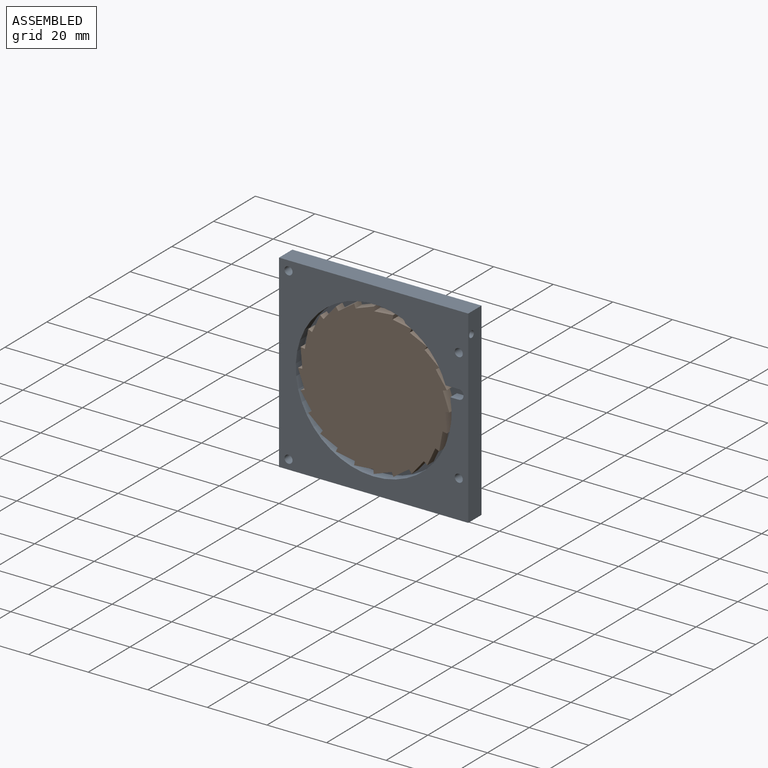
[diagram: assembled view]
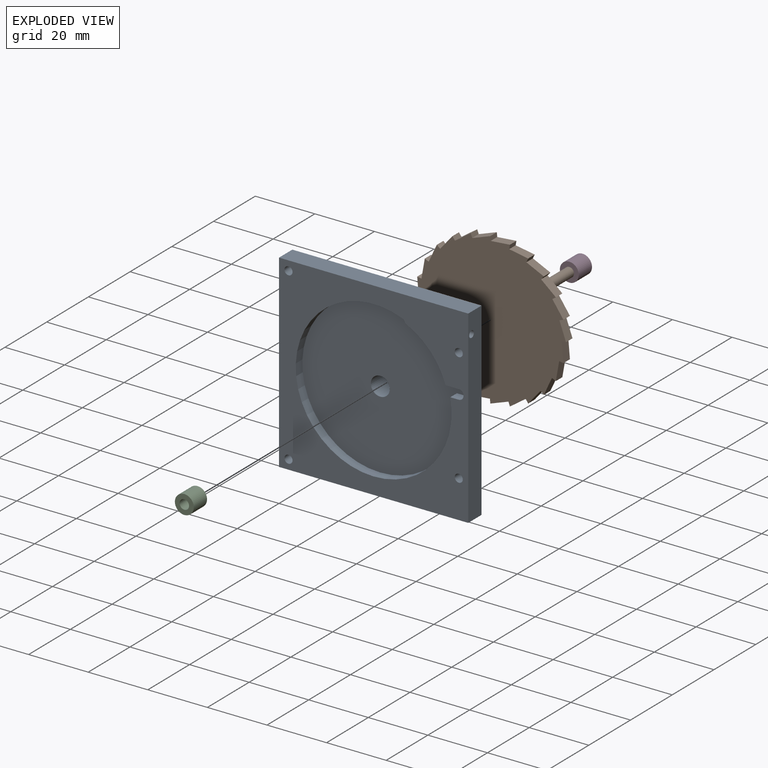
[diagram: exploded view]
GUIDED TOUR — MATED ASSEMBLY (Onshape document 8eb3bdaa9d71e246b9ef3472, AutoMate assembly 8eb3bdaa9d71e246b9ef3472_e2bbe83f050ec4818991709b_b82665791a3aad7e81ddd0f2_default)

This assembly has 4 components, labeled P0..P3 below (a component is one placed occurrence of a part; the same part can appear more than once), held together by 3 mates. A mate is a constraint between two components; its type names the relative motion it leaves free:
  FASTENED — locks the two components together rigidly (no relative motion),
  SLIDER — leaves translation along the listed axis free.
Axis/direction vectors are unit vectors and 'through' points are millimeter coordinates, both in the assembly's world frame.

MATES
  1. SLIDER "Slider 2": P0 <-> P2, axis (0.000, -1.000, 0.000) through (0.00, 0.00, 0.00) mm
  2. SLIDER "Slider 1": P0 <-> P3, axis (0.000, 1.000, 0.000) through (0.00, 28.57, 0.00) mm
  3. FASTENED "Fastened 2": P1 <-> P2, direction (0.000, 1.000, 0.000) through (0.00, -0.03, 0.00) mm

ASSEMBLY ORDER
  1. P0 — the base component [order verified]
  2. P2 [order verified]
  3. P1 [order verified]
  4. P3 [order verified]
Order-tag legend:
  [order verified] — this step's position reverses a verified removal order: the component was checked to insert without passing through the ones already placed.

Of the 4 components, 1 carries the full construction recipe — the FeatureScript program that regenerates the part's solid from scratch; the rest are supplied as boundary geometry only.
Each toured component is shown spotlighted twice — in the assembled view, then in the exploded view, where a leader line traces a displaced component back to its assembled socket (saturated green if recipe-attached, orange if geometry-only; every other component desaturated gray) — followed by its recipe or geometry summary and the mates that hold it.
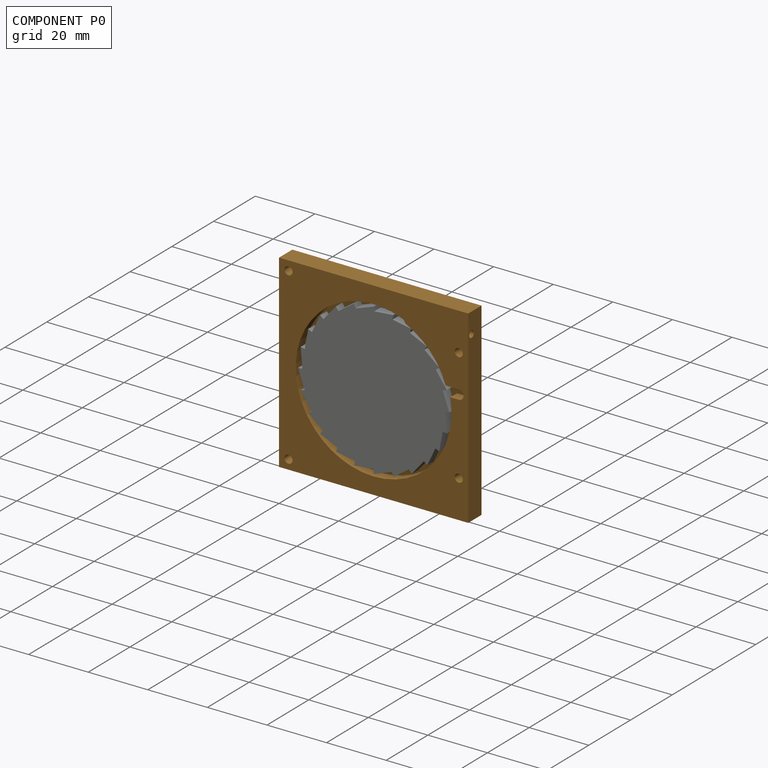
[diagram: component P0 — assembled]
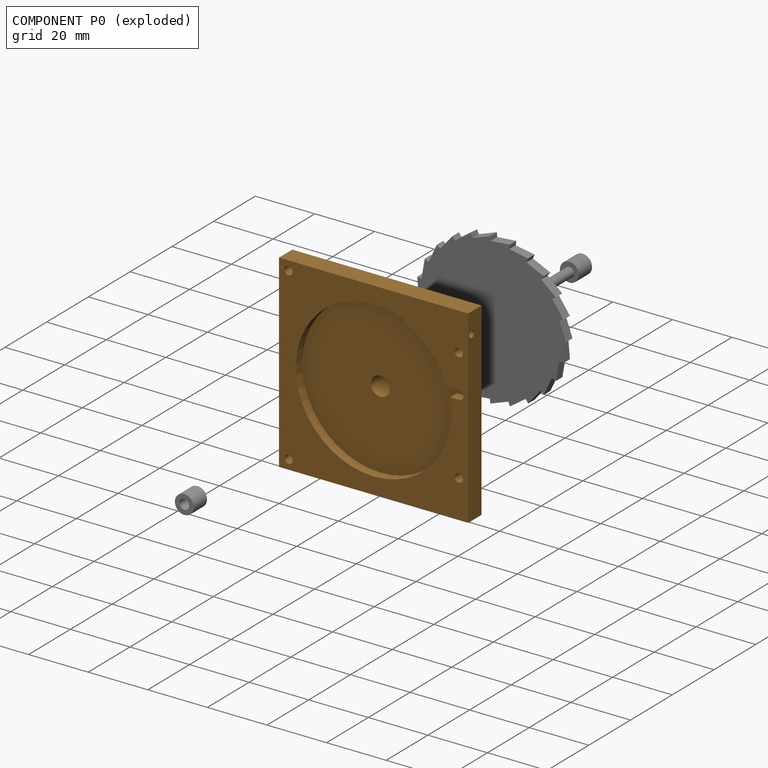
[diagram: component P0 — exploded]
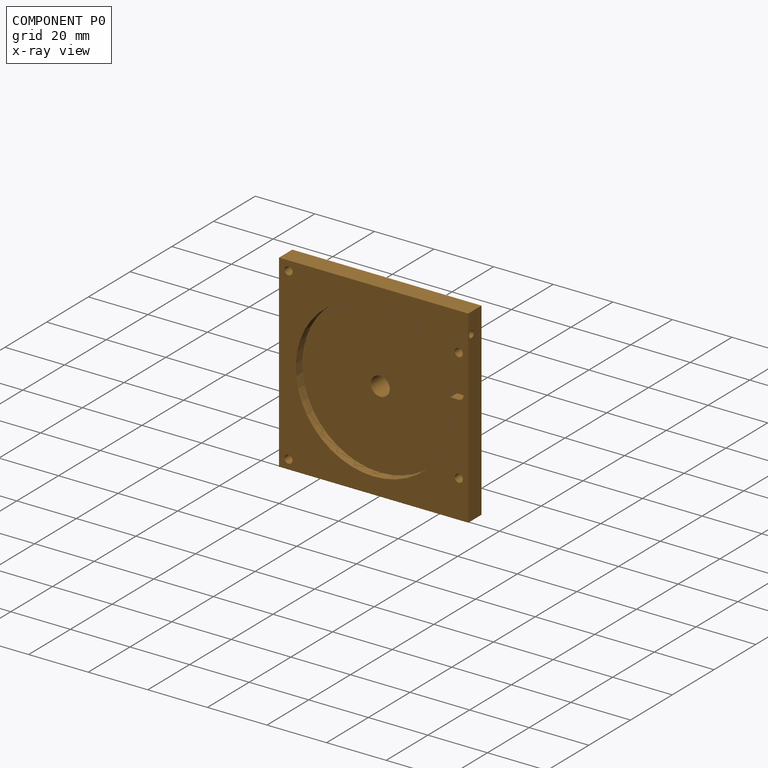
[diagram: component P0 — x-ray view]
COMPONENT P0 — geometry summary (no construction recipe available for this part):
  bounding box: 63.5 x 63.5 x 31.8 mm
  B-rep topology: 1 solid, 23 faces, 118 edges
  volume: 19475 mm^3 (15% of its bounding box)
Held by: SLIDER mate "Slider 2" to P2; SLIDER mate "Slider 1" to P3.
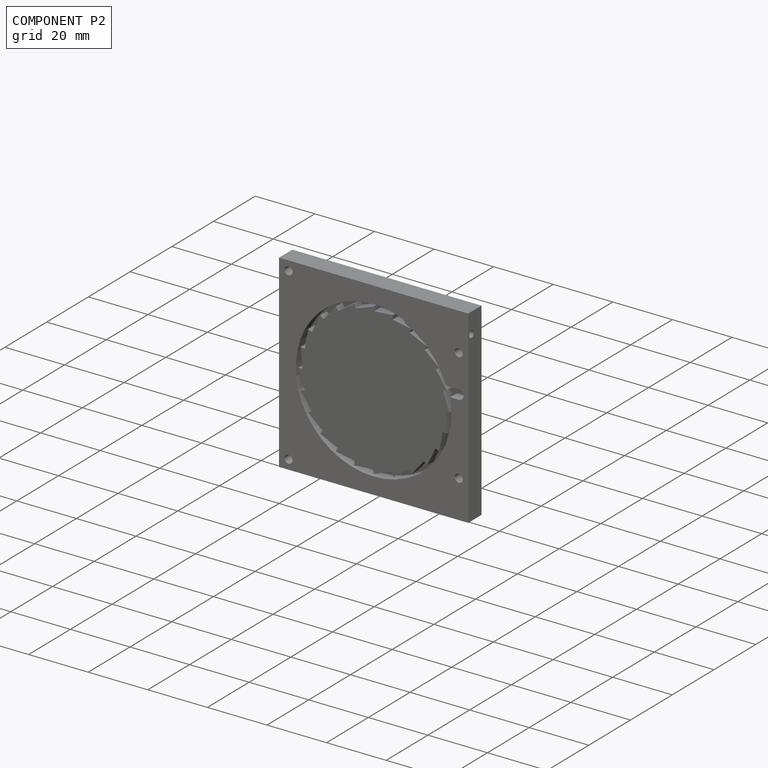
[diagram: component P2 — assembled]
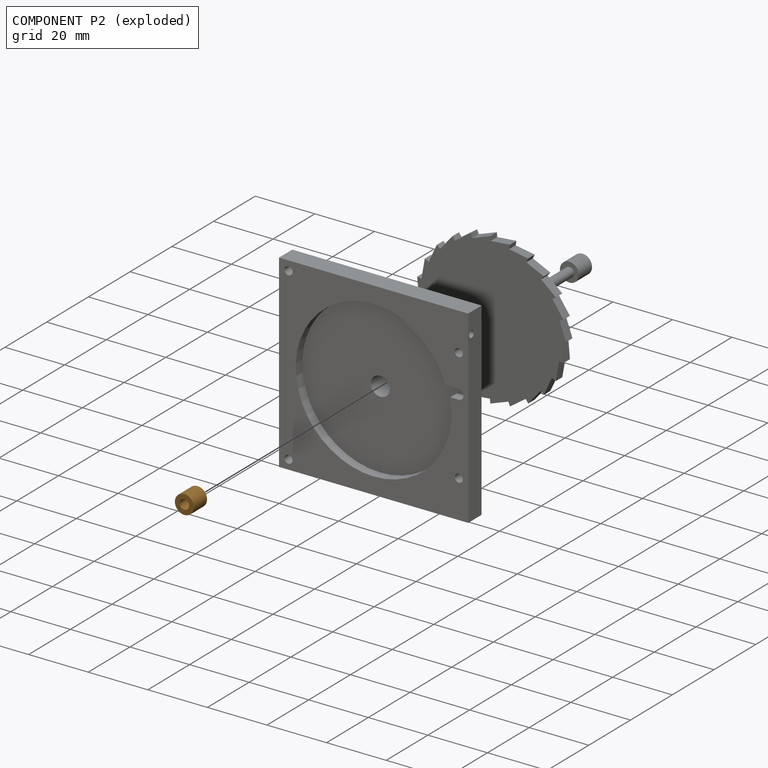
[diagram: component P2 — exploded]
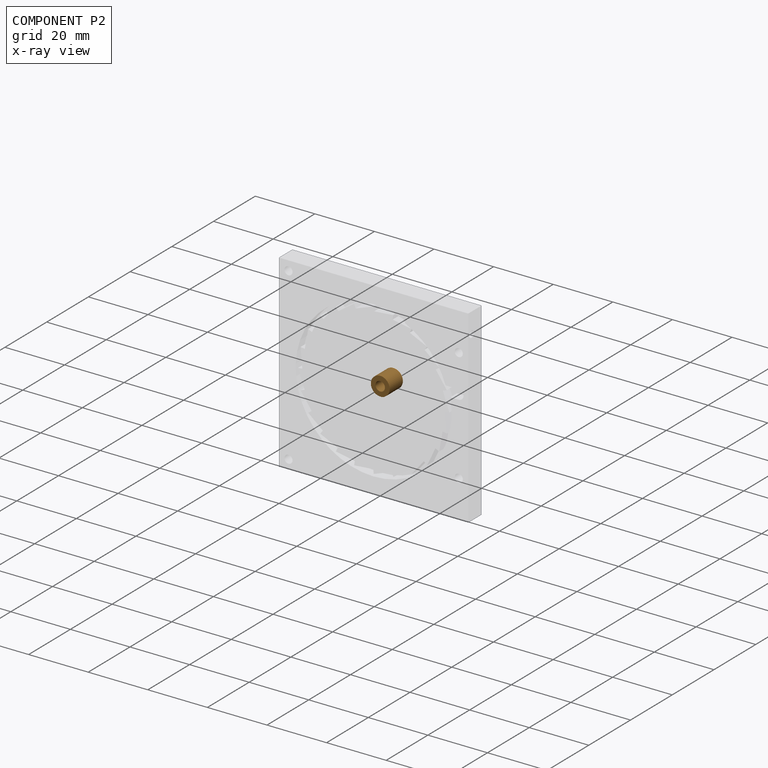
[diagram: component P2 — x-ray view]
COMPONENT P2 — geometry summary (no construction recipe available for this part):
  bounding box: 6.4 x 6.4 x 6.4 mm
  B-rep topology: 1 solid, 4 faces, 12 edges
  volume: 151 mm^3 (59% of its bounding box)
  symmetry: 2-fold rotationally symmetric about the x axis; revolution-symmetric about the y axis through its bounding-box center; 2-fold rotationally symmetric about the z axis; mirror-symmetric across its x mid-plane, y mid-plane, z mid-plane
Held by: SLIDER mate "Slider 2" to P0; FASTENED mate "Fastened 2" to P1.
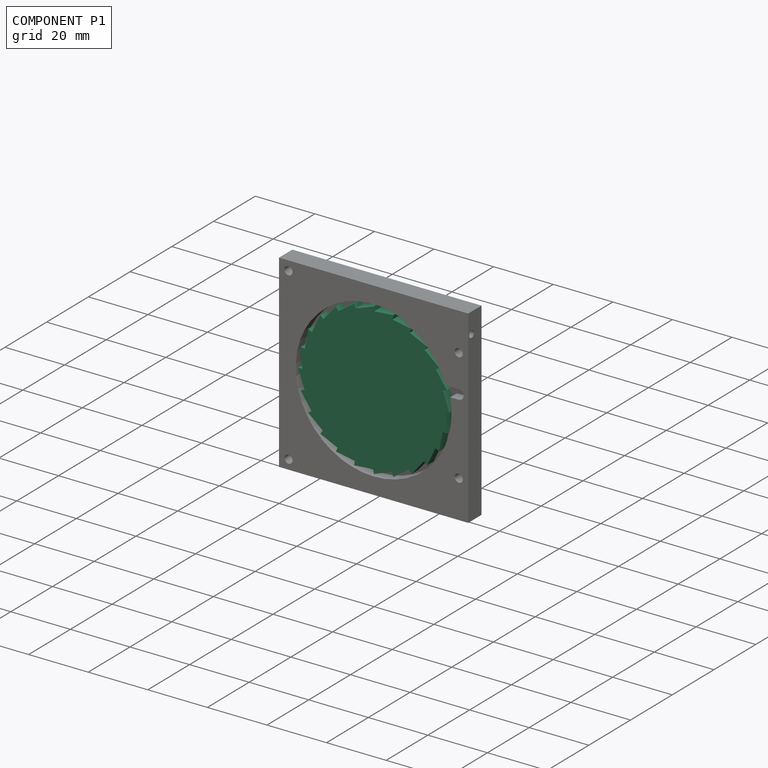
[diagram: component P1 — assembled]
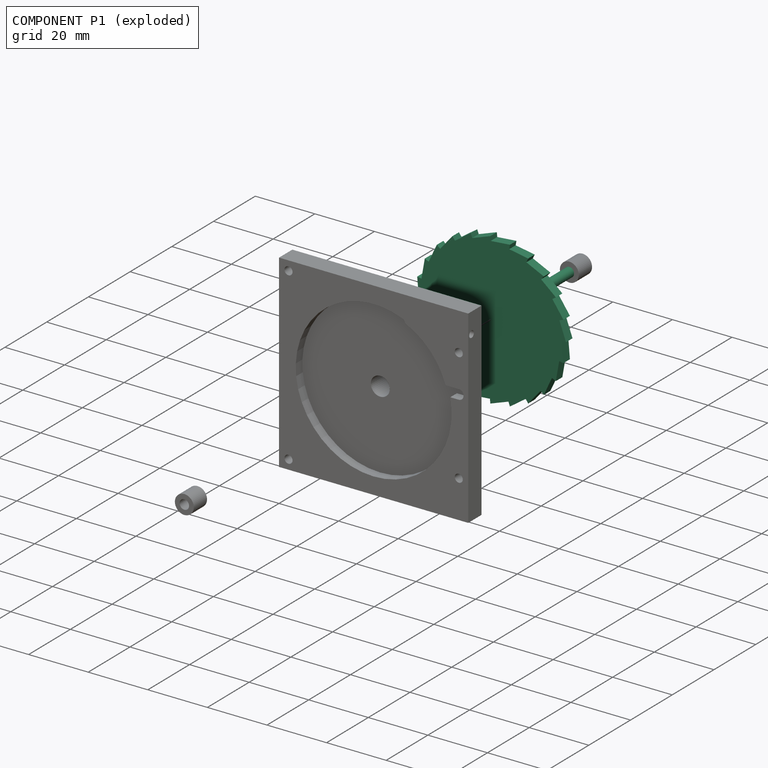
[diagram: component P1 — exploded]
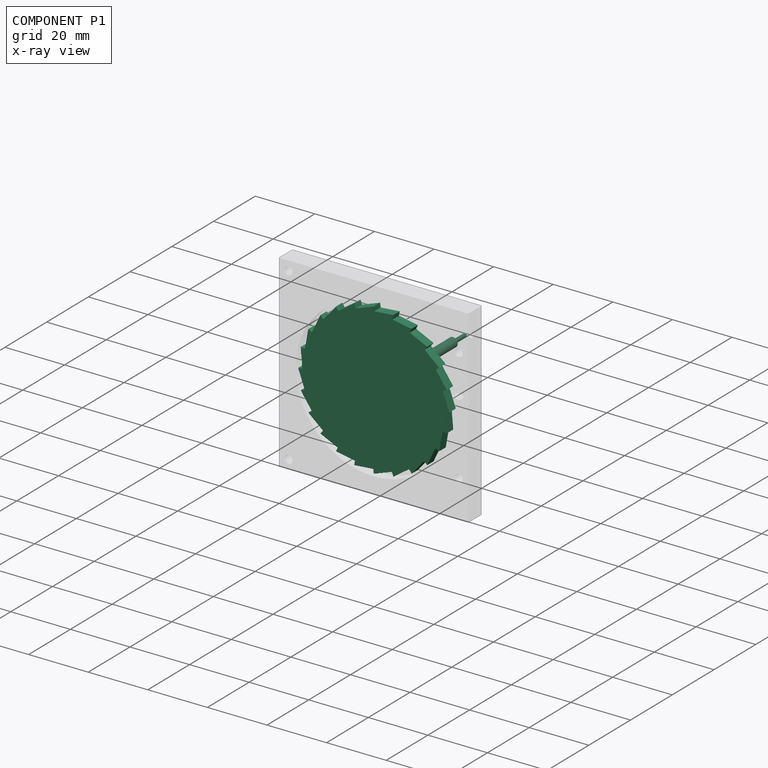
[diagram: component P1 — x-ray view]
COMPONENT P1 — recipe-attached (CADFS 00380084, mesh-verified: the recipe's output STEP matches this component's geometry to below the mesh-comparison resolution (tessellation chordal tolerance ~0.126 mm)).
Held by: FASTENED mate "Fastened 2" to P2.
Construction recipe (FeatureScript — the CAD program that rebuilds this solid; sketch coordinates are in the units given by the * unit suffixes, e.g. mm):

FeatureScript 1913;
import(path : "onshape/std/geometry.fs", version : "1913.0");
import(path : "onshape/std/common.fs", version : "1913.0");
const mm = millimeter;
const VERTEX = EntityType.VERTEX;
const EDGE = EntityType.EDGE;
const FACE = EntityType.FACE;
const BODY = EntityType.BODY;
function v(x, y){return vector(x, y);}
function OD(order){return orderDisambiguation(order);}
function OSD(set){return originalSetDisambiguation(set);}
function TD(topology){return topologyDisambiguation(topology);}
function TDD(query){return trueDependencyDisambiguation(query);}
function sQuery(a, b, c) {return sketchEntityQuery(a, b, c);}

annotation { "Feature Type Name" : "Feature", "Feature Type Description" : "" }
export const myFeature = defineFeature(function(context is Context, id is Id, definition is map)
    precondition{}
    {
        {
            var Q0;
            Q0=qCreatedBy(makeId("Front.planeOp"),FACE);
            var sketch = newSketch(context, id + "F0", { "sketchPlane" : qUnion([Q0])});
            skLineSegment(sketch, "E0", {"start": v(0, 0) * mm, "end": v(0, 25.4) * mm, "construction": true});
            skLineSegment(sketch, "E1", {"start": v(-7.2, 25.4) * mm, "end": v(0, 25.4) * mm, "construction": true});
            skLineSegment(sketch, "E2", {"start": v(0, 0) * mm, "end": v(-6.57, 24.53) * mm, "construction": true});
            skLineSegment(sketch, "E3.anchor2", {"start": v(0, 0) * mm, "end": v(0, 12.68) * mm, "construction": true});
            skLineSegment(sketch, "E4", {"start": v(0, 25.4) * mm, "end": v(-6.08, 23.19) * mm});
            skLineSegment(sketch, "E5", {"start": v(-6.08, 23.19) * mm, "end": v(-6.57, 24.53) * mm});
            skLineSegment(sketch, "E6.1.0", {"start": v(6.57, 24.53) * mm, "end": v(0.13, 23.97) * mm});
            skLineSegment(sketch, "E6.1.1", {"start": v(0.13, 23.97) * mm, "end": v(0, 25.4) * mm});
            skLineSegment(sketch, "E6.2.0", {"start": v(12.7, 22) * mm, "end": v(6.32, 23.12) * mm});
            skLineSegment(sketch, "E6.2.1", {"start": v(6.32, 23.12) * mm, "end": v(6.57, 24.53) * mm});
            skLineSegment(sketch, "E6.3.0", {"start": v(17.96, 17.96) * mm, "end": v(12.1, 20.7) * mm});
            skLineSegment(sketch, "E6.3.1", {"start": v(12.1, 20.7) * mm, "end": v(12.7, 22) * mm});
            skLineSegment(sketch, "E6.4.0", {"start": v(22, 12.7) * mm, "end": v(17.04, 16.86) * mm});
            skLineSegment(sketch, "E6.4.1", {"start": v(17.04, 16.86) * mm, "end": v(17.96, 17.96) * mm});
            skLineSegment(sketch, "E6.5.0", {"start": v(24.53, 6.57) * mm, "end": v(20.82, 11.88) * mm});
            skLineSegment(sketch, "E6.5.1", {"start": v(20.82, 11.88) * mm, "end": v(22, 12.7) * mm});
            skLineSegment(sketch, "E6.6.0", {"start": v(25.4, 0) * mm, "end": v(23.19, 6.08) * mm});
            skLineSegment(sketch, "E6.6.1", {"start": v(23.19, 6.08) * mm, "end": v(24.53, 6.57) * mm});
            skLineSegment(sketch, "E6.7.0", {"start": v(24.53, -6.57) * mm, "end": v(23.97, -0.13) * mm});
            skLineSegment(sketch, "E6.7.1", {"start": v(23.97, -0.13) * mm, "end": v(25.4, 0) * mm});
            skLineSegment(sketch, "E6.8.0", {"start": v(22, -12.7) * mm, "end": v(23.12, -6.32) * mm});
            skLineSegment(sketch, "E6.8.1", {"start": v(23.12, -6.32) * mm, "end": v(24.53, -6.57) * mm});
            skLineSegment(sketch, "E6.9.0", {"start": v(17.96, -17.96) * mm, "end": v(20.7, -12.1) * mm});
            skLineSegment(sketch, "E6.9.1", {"start": v(20.7, -12.1) * mm, "end": v(22, -12.7) * mm});
            skLineSegment(sketch, "E6.10.0", {"start": v(12.7, -22) * mm, "end": v(16.86, -17.04) * mm});
            skLineSegment(sketch, "E6.10.1", {"start": v(16.86, -17.04) * mm, "end": v(17.96, -17.96) * mm});
            skLineSegment(sketch, "E6.11.0", {"start": v(6.57, -24.53) * mm, "end": v(11.88, -20.82) * mm});
            skLineSegment(sketch, "E6.11.1", {"start": v(11.88, -20.82) * mm, "end": v(12.7, -22) * mm});
            skLineSegment(sketch, "E6.12.0", {"start": v(0, -25.4) * mm, "end": v(6.08, -23.19) * mm});
            skLineSegment(sketch, "E6.12.1", {"start": v(6.08, -23.19) * mm, "end": v(6.57, -24.53) * mm});
            skLineSegment(sketch, "E6.13.0", {"start": v(-6.57, -24.53) * mm, "end": v(-0.13, -23.97) * mm});
            skLineSegment(sketch, "E6.13.1", {"start": v(-0.13, -23.97) * mm, "end": v(0, -25.4) * mm});
            skLineSegment(sketch, "E6.14.0", {"start": v(-12.7, -22) * mm, "end": v(-6.32, -23.12) * mm});
            skLineSegment(sketch, "E6.14.1", {"start": v(-6.32, -23.12) * mm, "end": v(-6.57, -24.53) * mm});
            skLineSegment(sketch, "E6.15.0", {"start": v(-17.96, -17.96) * mm, "end": v(-12.1, -20.7) * mm});
            skLineSegment(sketch, "E6.15.1", {"start": v(-12.1, -20.7) * mm, "end": v(-12.7, -22) * mm});
            skLineSegment(sketch, "E6.16.0", {"start": v(-22, -12.7) * mm, "end": v(-17.04, -16.86) * mm});
            skLineSegment(sketch, "E6.16.1", {"start": v(-17.04, -16.86) * mm, "end": v(-17.96, -17.96) * mm});
            skLineSegment(sketch, "E6.17.0", {"start": v(-24.53, -6.57) * mm, "end": v(-20.82, -11.88) * mm});
            skLineSegment(sketch, "E6.17.1", {"start": v(-20.82, -11.88) * mm, "end": v(-22, -12.7) * mm});
            skLineSegment(sketch, "E6.18.0", {"start": v(-25.4, 0) * mm, "end": v(-23.19, -6.08) * mm});
            skLineSegment(sketch, "E6.18.1", {"start": v(-23.19, -6.08) * mm, "end": v(-24.53, -6.57) * mm});
            skLineSegment(sketch, "E6.19.0", {"start": v(-24.53, 6.57) * mm, "end": v(-23.97, 0.13) * mm});
            skLineSegment(sketch, "E6.19.1", {"start": v(-23.97, 0.13) * mm, "end": v(-25.4, 0) * mm});
            skLineSegment(sketch, "E6.20.0", {"start": v(-22, 12.7) * mm, "end": v(-23.12, 6.32) * mm});
            skLineSegment(sketch, "E6.20.1", {"start": v(-23.12, 6.32) * mm, "end": v(-24.53, 6.57) * mm});
            skLineSegment(sketch, "E6.21.0", {"start": v(-17.96, 17.96) * mm, "end": v(-20.7, 12.1) * mm});
            skLineSegment(sketch, "E6.21.1", {"start": v(-20.7, 12.1) * mm, "end": v(-22, 12.7) * mm});
            skLineSegment(sketch, "E6.22.0", {"start": v(-12.7, 22) * mm, "end": v(-16.86, 17.04) * mm});
            skLineSegment(sketch, "E6.22.1", {"start": v(-16.86, 17.04) * mm, "end": v(-17.96, 17.96) * mm});
            skLineSegment(sketch, "E6.23.0", {"start": v(-6.57, 24.53) * mm, "end": v(-11.88, 20.82) * mm});
            skLineSegment(sketch, "E6.23.1", {"start": v(-11.88, 20.82) * mm, "end": v(-12.7, 22) * mm});
            skPoint(sketch, "E6.center", {"position": v(0, 0) * mm});
            skSolve(sketch);
        }
        {
            var Q0;
            Q0 = qSketchRegion(id + "F0", true);
            extrude(context, id + "F1", {"entities" : qUnion([Q0]), "offsetDistance" : 25.4 * mm, "depth" : 3.12 * mm});
        }
        {
            var Q0;
            Q0=makeQuery(id+"F1.opExtrude","CAP_FACE",FACE,{"disambiguationData":[OSD([sQuery(id+"F0.wireOp",EDGE,"E6.1.0"),sQuery(id+"F0.wireOp",EDGE,"E6.1.1"),sQuery(id+"F0.wireOp",EDGE,"E6.2.0"),sQuery(id+"F0.wireOp",EDGE,"E6.2.1"),sQuery(id+"F0.wireOp",EDGE,"E6.3.0"),sQuery(id+"F0.wireOp",EDGE,"E6.3.1"),sQuery(id+"F0.wireOp",EDGE,"E6.4.0"),sQuery(id+"F0.wireOp",EDGE,"E6.4.1"),sQuery(id+"F0.wireOp",EDGE,"E6.5.0"),sQuery(id+"F0.wireOp",EDGE,"E6.5.1"),sQuery(id+"F0.wireOp",EDGE,"E6.6.0"),sQuery(id+"F0.wireOp",EDGE,"E6.6.1"),sQuery(id+"F0.wireOp",EDGE,"E6.7.0"),sQuery(id+"F0.wireOp",EDGE,"E6.7.1"),sQuery(id+"F0.wireOp",EDGE,"E6.8.0"),sQuery(id+"F0.wireOp",EDGE,"E6.8.1"),sQuery(id+"F0.wireOp",EDGE,"E6.9.0"),sQuery(id+"F0.wireOp",EDGE,"E6.9.1"),sQuery(id+"F0.wireOp",EDGE,"E6.10.0"),sQuery(id+"F0.wireOp",EDGE,"E6.10.1"),sQuery(id+"F0.wireOp",EDGE,"E6.11.0"),sQuery(id+"F0.wireOp",EDGE,"E6.11.1"),sQuery(id+"F0.wireOp",EDGE,"E6.12.0"),sQuery(id+"F0.wireOp",EDGE,"E6.12.1"),sQuery(id+"F0.wireOp",EDGE,"E6.13.0"),sQuery(id+"F0.wireOp",EDGE,"E6.13.1"),sQuery(id+"F0.wireOp",EDGE,"E6.14.0"),sQuery(id+"F0.wireOp",EDGE,"E6.14.1"),sQuery(id+"F0.wireOp",EDGE,"E6.15.0"),sQuery(id+"F0.wireOp",EDGE,"E6.15.1"),sQuery(id+"F0.wireOp",EDGE,"E6.16.0"),sQuery(id+"F0.wireOp",EDGE,"E6.16.1"),sQuery(id+"F0.wireOp",EDGE,"E6.17.0"),sQuery(id+"F0.wireOp",EDGE,"E6.17.1"),sQuery(id+"F0.wireOp",EDGE,"E6.18.0"),sQuery(id+"F0.wireOp",EDGE,"E6.18.1"),sQuery(id+"F0.wireOp",EDGE,"E6.19.0"),sQuery(id+"F0.wireOp",EDGE,"E6.19.1"),sQuery(id+"F0.wireOp",EDGE,"E6.20.0"),sQuery(id+"F0.wireOp",EDGE,"E6.20.1"),sQuery(id+"F0.wireOp",EDGE,"E6.21.0"),sQuery(id+"F0.wireOp",EDGE,"E6.21.1"),sQuery(id+"F0.wireOp",EDGE,"E6.22.0"),sQuery(id+"F0.wireOp",EDGE,"E6.22.1"),sQuery(id+"F0.wireOp",EDGE,"E6.23.0"),sQuery(id+"F0.wireOp",EDGE,"E6.23.1"),sQuery(id+"F0.wireOp",EDGE,"E4"),sQuery(id+"F0.wireOp",EDGE,"E5")])],"isStart":true});
            var sketch = newSketch(context, id + "F2", { "sketchPlane" : qUnion([Q0])});
            skCircle(sketch, "E7", {"center": v(0, 0) * mm, "radius": 1.59 * mm});
            skSolve(sketch);
        }
        {
            var Q0;
            Q0 = qSketchRegion(id + "F2", true);
            extrude(context, id + "F3", {"entities" : qUnion([Q0]), "operationType" : NewBodyOperationType.ADD, "depth" : 34.92 * mm});
        }
        {
            var Q0;
            Q0=makeQuery(id+"F3.opExtrude","CAP_FACE",FACE,{"disambiguationData":[OSD([sQuery(id+"F2.wireOp",EDGE,"E7")])],"isStart":false});
            var sketch = newSketch(context, id + "F4", { "sketchPlane" : qUnion([Q0])});
            skCircle(sketch, "E8", {"center": v(0, 0) * mm, "radius": 0.64 * mm});
            skSolve(sketch);
        }
        {
            var Q0;
            Q0 = qSketchRegion(id + "F4", true);
            extrude(context, id + "F5", {"entities" : qUnion([Q0]), "operationType" : NewBodyOperationType.ADD, "depth" : 5.66 * mm});
        }
    });
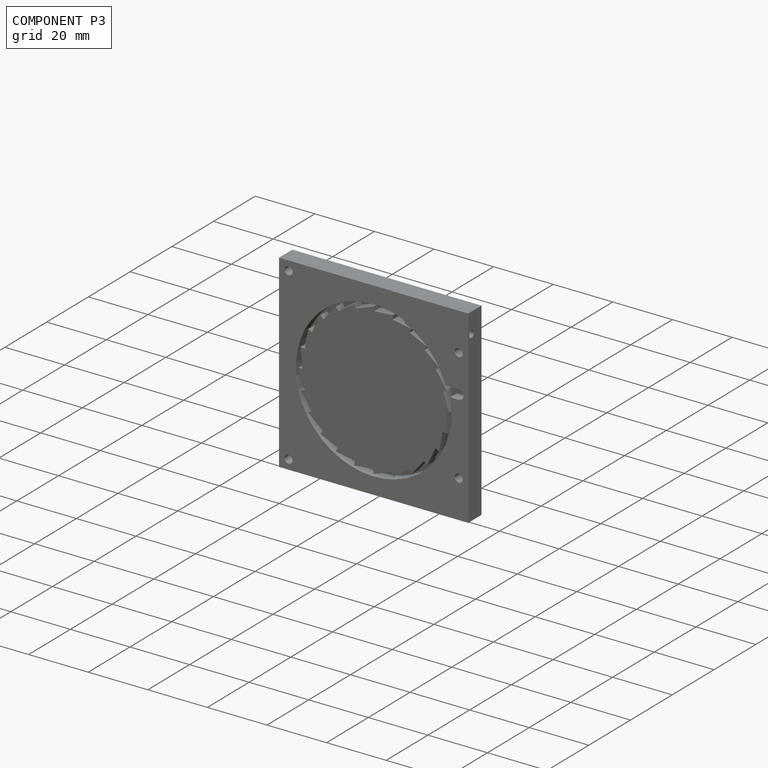
[diagram: component P3 — assembled]
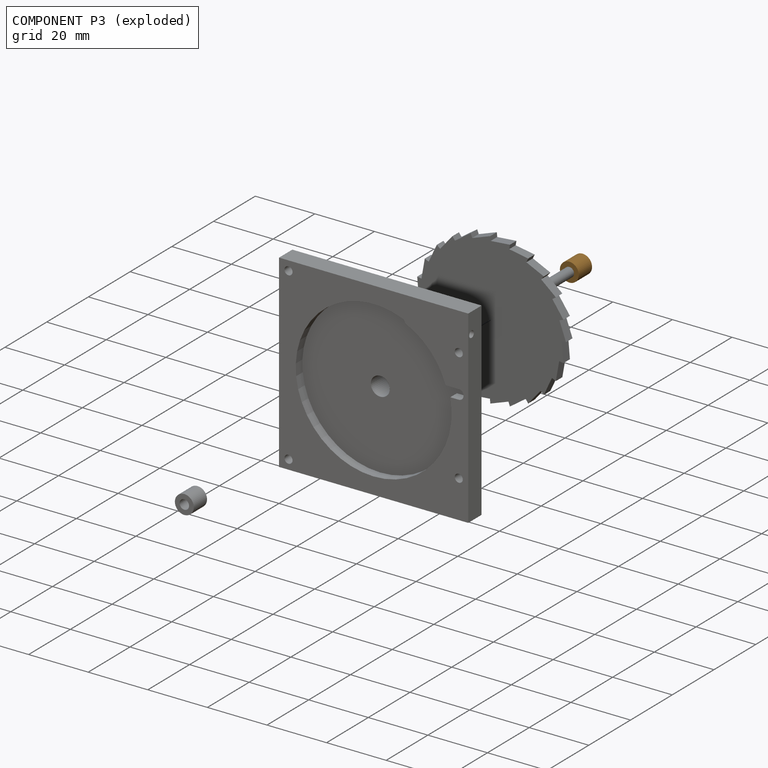
[diagram: component P3 — exploded]
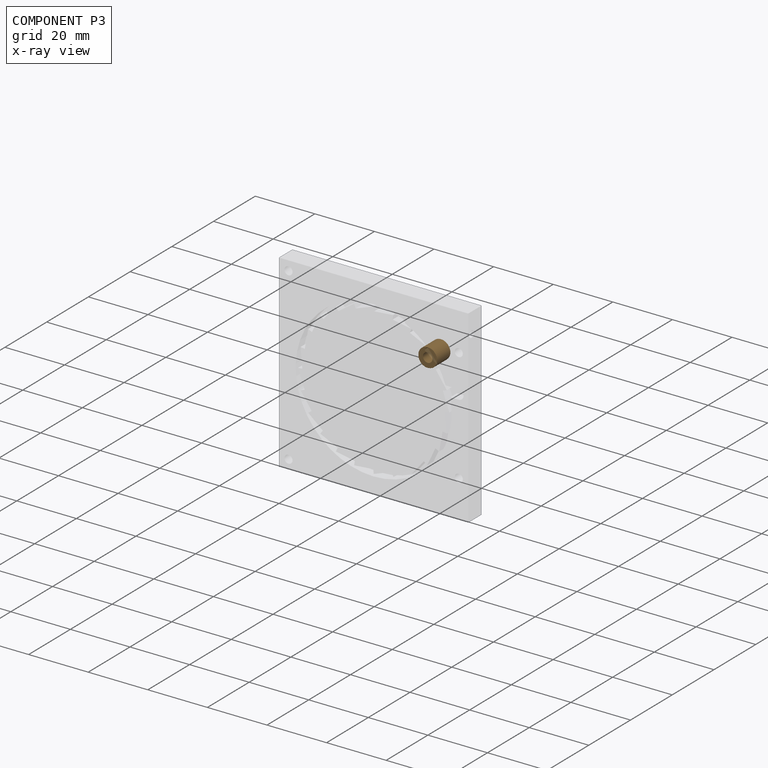
[diagram: component P3 — x-ray view]
COMPONENT P3 — geometry summary (no construction recipe available for this part):
  bounding box: 6.4 x 6.4 x 6.4 mm
  B-rep topology: 1 solid, 4 faces, 12 edges
  volume: 151 mm^3 (59% of its bounding box)
  symmetry: 2-fold rotationally symmetric about the x axis; revolution-symmetric about the y axis through its bounding-box center; 2-fold rotationally symmetric about the z axis; mirror-symmetric across its x mid-plane, y mid-plane, z mid-plane
Held by: SLIDER mate "Slider 1" to P0.
PROVENANCE & LICENSES
Assembly (occurrences, transforms, mates, per-part STEP geometry): AutoMate dataset, Zenodo record 7776208, CC0.
Construction recipes: CADFS (HuggingFace VladPyatov/CADFS, CC-BY-4.0, layered over the ABC dataset), FeatureScript reconstruction programs keyed by ABC model id.
Join: ABC meta listings map ABC model id -> Onshape documentId; within a shared document, parts are matched by geometric signature (bounding-box dims + volume at 0.1% relative tolerance, exact B-rep face/solid counts).
Verification: 1 of this assembly's 4 components carries a recipe attachment, and every attachment is mesh-verified: the CADFS STEP and the AutoMate member STEP were compared as meshes in their shared local frame (symmetric sampled-point-to-mesh distance); worst across the 1 attachment: below the mesh-comparison resolution (tessellation chordal tolerance ~0.126 mm) on a 84 mm part.
Renders: orthographic iso camera (az 35 / el 25); the floor grid conveys scale (grid pitch printed in each image; no ruler). In the exploded view each component is displaced by its stored offset vector: the offsets alone carry the explosion direction (mate normal/axis signs are not orientation cues and do not encode it), and separation distances are assigned per mate-chain, not proportionally to assembly-order depth.
